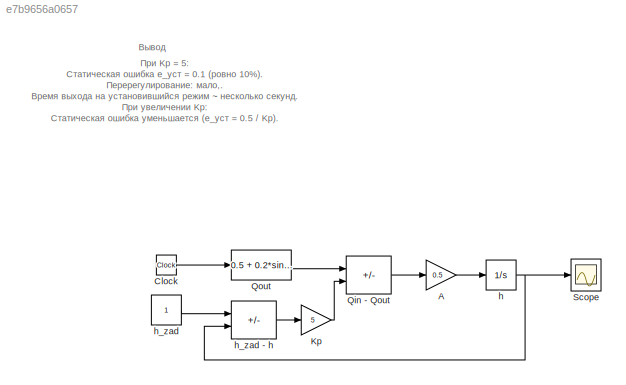
MODEL slx_e7b9656a0657
KIND model
CONFIG AbsTol = auto
CONFIG EnableMultiTasking = off
CONFIG FixedStep = auto
CONFIG MaxStep = auto
CONFIG MinStep = auto
CONFIG RelTol = 1e-3
CONFIG SampleTimeConstraint = Unconstrained
CONFIG SolverName = VariableStepAuto
CONFIG StartTime = 0.0
CONFIG StopTime = 100.0
BLOCK [Gain] A
  Gain = 0.5
BLOCK [Clock] Clock
BLOCK [Gain] Kp
  Gain = 5
BLOCK [Sum] Qin - Qout
  IconShape = rectangular
  Inputs = -+
BLOCK [Fcn] Qout
  Expr = 0.5 + 0.2*sin(0.1*u)
BLOCK [Scope] Scope
  Floating = off
  NumInputPorts = 1
  ScopeSpecificationString = Simulink.scopes.TimeScopeBlockCfg('CurrentConfiguration', extmgr.ConfigurationSet(extmgr.Configuration('Core','General UI',true),extmgr.Configuration('Core','Source UI',true),extmgr.Configuration('Sources','WiredSimulink',true),extmgr.Configuration('Visuals','Time Domain',true,'SerializedDisplays',{struct('MinYLimReal','0.78255','MaxYLimReal','0.95701','YLabelReal','','MinYLimMag','0.78255','MaxYL...<+1780ch>
BLOCK [Integrator] h
  InitialCondition = 0.8
BLOCK [Constant] h_zad
BLOCK [Sum] h_zad - h 
  IconShape = rectangular
  Inputs = +-
ANNOTATION (root): При Kp = 5: Статическая ошибка e_уст = 0.1 (ровно 10%). Перерегулирование: мало,. Время выхода на установившийся режим ~ несколько секунд. При увеличении Kp: Статическая ошибка уменьшается (e_уст = 0.5 / Kp). Система становится более быстродействующей. Но при слишком больших Kp могут усилиться колебания из-за переменной составляющей Q_ out .
ANNOTATION (root): Вывод
LINE A:1 -> h:1
LINE Clock:1 -> Qout:1
LINE Kp:1 -> Qin - Qout:2
LINE Qin - Qout:1 -> A:1
LINE Qout:1 -> Qin - Qout:1
NET h:1 -> Scope:1, h_zad - h :2
LINE h_zad - h :1 -> Kp:1
LINE h_zad:1 -> h_zad - h :1
note: NET lines group one-source signal fan-out (src -> all destinations, sorted); 1:1 wires keep LINE
